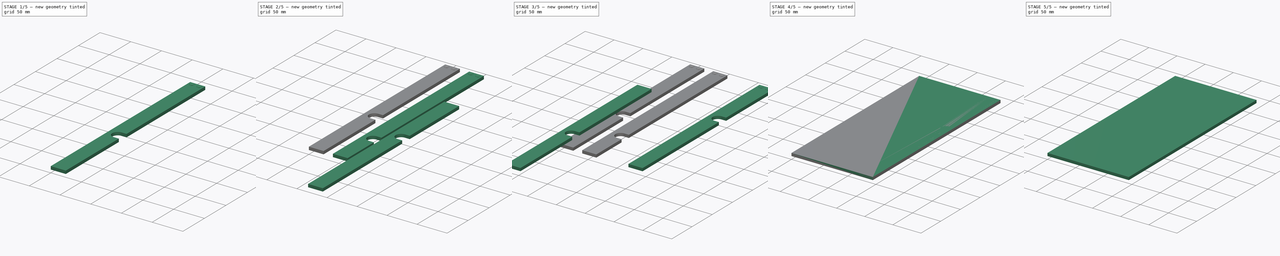
[diagram: build sequence overview — one tinted view per stage of 5, left to right]
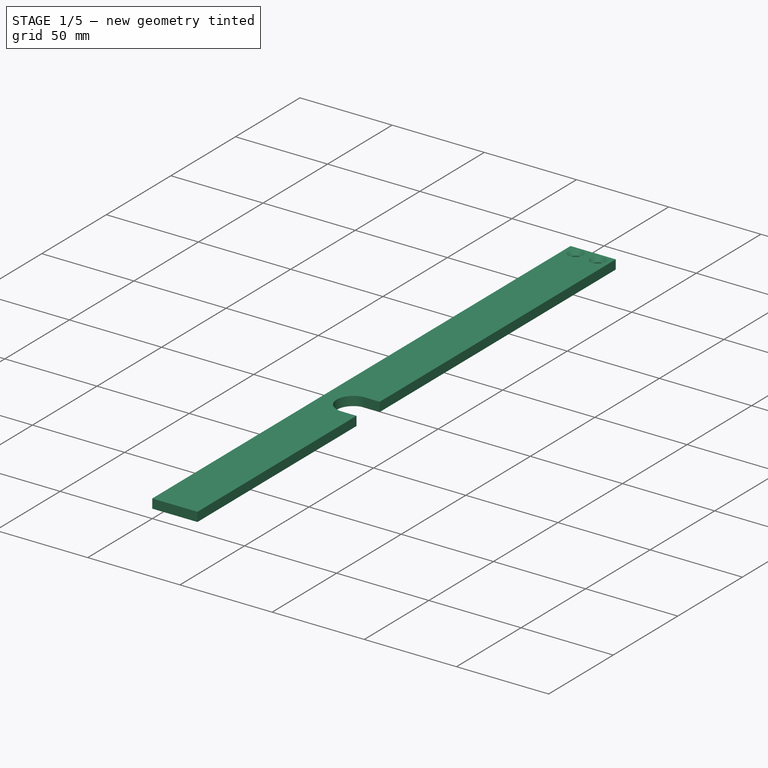
[diagram: stage 1 of 5 — iso view after this stage's code; geometry added in this stage tinted green]
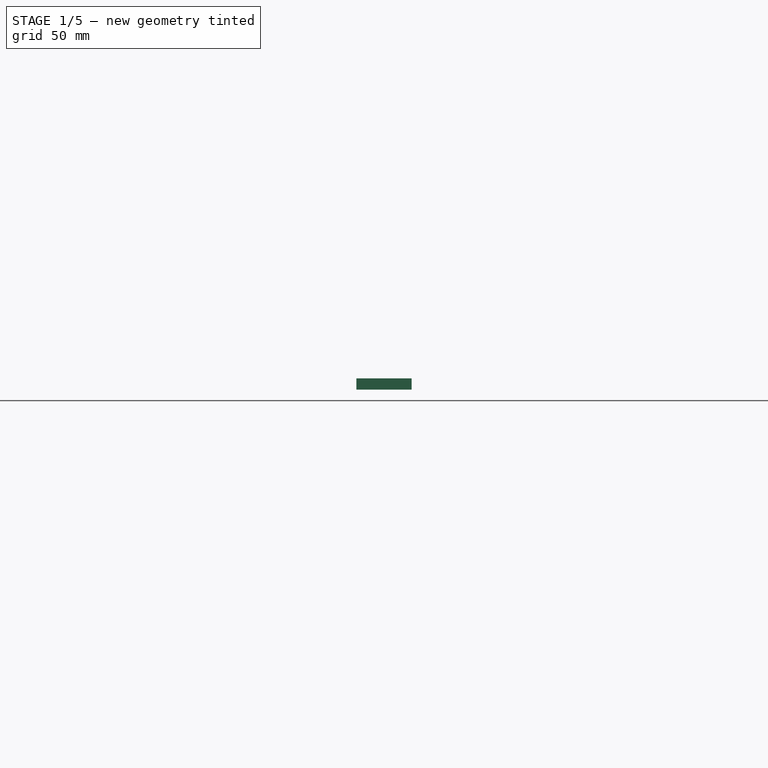
[diagram: stage 1 of 5 — front view after this stage's code; geometry added in this stage tinted green]
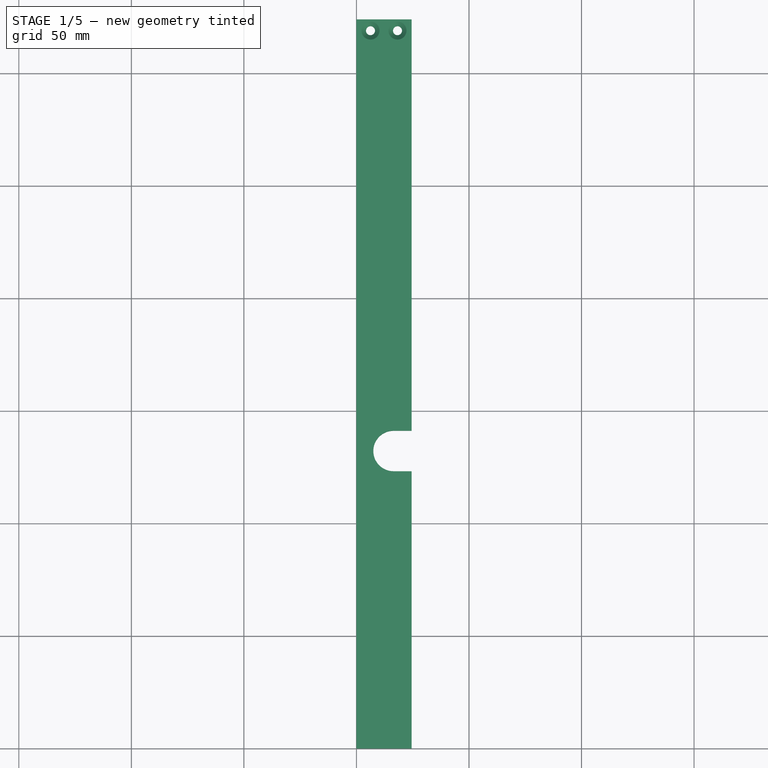
[diagram: stage 1 of 5 — top view after this stage's code; geometry added in this stage tinted green]
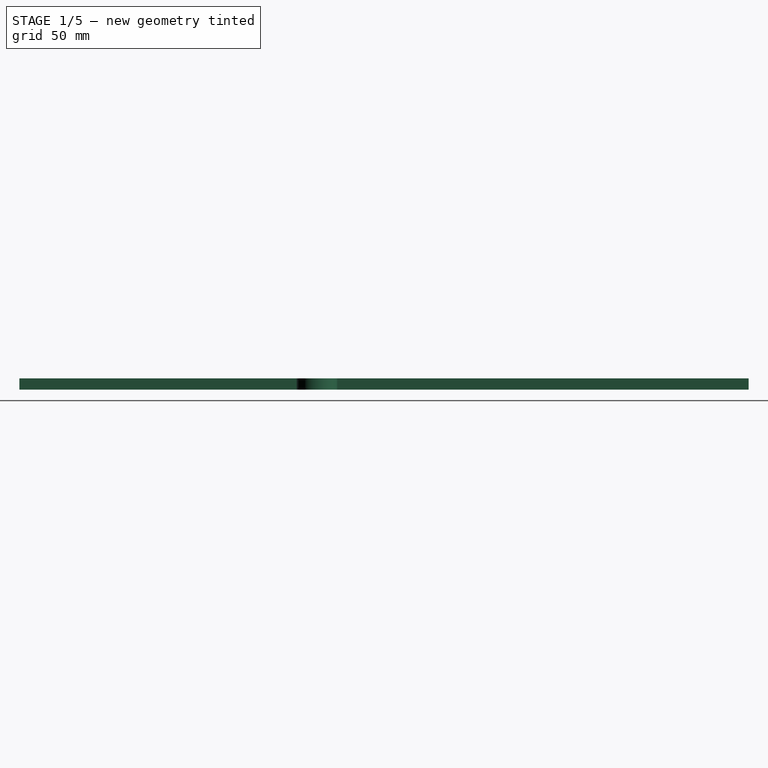
[diagram: stage 1 of 5 — right view after this stage's code; geometry added in this stage tinted green]
FCSTD DOCUMENT  (FreeCAD 0.19R23141 (Git))
Label: gear-locks-cam
License: All rights reserved
LicenseURL: http://en.wikipedia.org/wiki/All_rights_reserved
objects: Part::FeaturePython×10, Sketcher::SketchObject×9, Path::FeaturePython×7, PartDesign::ShapeBinder×4, PartDesign::Pad×4, PartDesign::Pocket×4, PartDesign::Chamfer×4, PartDesign::Body×4, App::FeaturePython×2, App::DocumentObjectGroup×2, Path::FeatureCompoundPython×2
note: 52 computed .brp shape members not serialized (recipe doc carries the construction recipe); baked Part::Feature solids carry a one-line shape summary decoded from their .brp

FEATURE [Sketcher::SketchObject] Sketch  label="MasterSketch"
  MapMode = 5
  sketch-geometry (22):
    g0: Circle CenterX=-238 CenterY=0 CenterZ=0 NormalX=0 NormalY=0 NormalZ=1 AngleXU=0 Radius=16.25
    g1: Circle CenterX=225 CenterY=0 CenterZ=0 NormalX=0 NormalY=0 NormalZ=1 AngleXU=0 Radius=79.25
    g2: Circle CenterX=-159.323 CenterY=24.4049 CenterZ=0 NormalX=0 NormalY=0 NormalZ=1 AngleXU=0 Radius=66.125
    g3: Circle CenterX=-69.3232 CenterY=-36.4177 CenterZ=0 NormalX=0 NormalY=0 NormalZ=1 AngleXU=0 Radius=55.625
    g4: Circle CenterX=20.6768 CenterY=28.9777 CenterZ=0 NormalX=0 NormalY=0 NormalZ=1 AngleXU=0 Radius=81.875
    g5: Circle CenterX=110.677 CenterY=89.8003 CenterZ=0 NormalX=0 NormalY=0 NormalZ=1 AngleXU=0 Radius=66.125
    g6: LineSegment StartX=-275 StartY=216.2 StartZ=0 EndX=275 EndY=216.2 EndZ=0
    g7: LineSegment StartX=275 StartY=216.2 StartZ=0 EndX=275 EndY=-133.8 EndZ=0
    g8: LineSegment StartX=275 StartY=-133.8 StartZ=0 EndX=-275 EndY=-133.8 EndZ=0
    g9: LineSegment StartX=-275 StartY=-133.8 StartZ=0 EndX=-275 EndY=216.2 EndZ=0
    g10: Circle CenterX=-159.323 CenterY=24.4049 CenterZ=0 NormalX=0 NormalY=0 NormalZ=1 AngleXU=0 Radius=53
    g11: Circle CenterX=-69.3232 CenterY=-36.4177 CenterZ=0 NormalX=0 NormalY=0 NormalZ=1 AngleXU=0 Radius=29.375
    g12: Circle CenterX=20.6768 CenterY=28.9777 CenterZ=0 NormalX=0 NormalY=0 NormalZ=1 AngleXU=0 Radius=42.5
    g13: Circle CenterX=110.677 CenterY=89.8003 CenterZ=0 NormalX=0 NormalY=0 NormalZ=1 AngleXU=0 Radius=13.625
    g14: Circle CenterX=225 CenterY=0 CenterZ=0 NormalX=0 NormalY=0 NormalZ=1 AngleXU=0 Radius=63.5
    g15: LineSegment [constr] StartX=-159.323 StartY=24.4049 StartZ=0 EndX=-159.323 EndY=0 EndZ=0
    g16: LineSegment [constr] StartX=-69.3232 StartY=-36.4177 StartZ=0 EndX=-69.3232 EndY=0 EndZ=0
    g17: LineSegment [constr] StartX=20.6768 StartY=28.9777 StartZ=0 EndX=20.6768 EndY=0 EndZ=0
    g18: LineSegment [constr] StartX=110.677 StartY=89.8003 StartZ=0 EndX=110.677 EndY=0 EndZ=0
    g19: LineSegment [constr] StartX=-159.323 StartY=0 StartZ=0 EndX=-69.3232 EndY=0 EndZ=0
    g20: LineSegment [constr] StartX=-69.3232 StartY=0 StartZ=0 EndX=20.6768 EndY=0 EndZ=0
    g21: LineSegment [constr] StartX=20.6768 StartY=0 StartZ=0 EndX=110.677 EndY=0 EndZ=0
  constraints (61):
    c: PointOnObject(g0,g-1)
    c: PointOnObject(g1,g-1)
    c: Coincident(g6,g7)
    c: Coincident(g7,g8)
    c: Coincident(g8,g9)
    c: Coincident(g9,g6)
    c: Horizontal(g6)
    c: Vertical(g7)
    c: Vertical(g9)
    c: DistanceX(g6,g6) = 550
    c: DistanceY(g9,g9) = 350
    c: Radius(g2) = 66.125
    c: Radius(g0) = 16.25
    c: Tangent(g2,g0)
    c: Radius(g3) = 55.625
    c: Coincident(g10,g2)
    c: Coincident(g11,g3)
    c: Coincident(g12,g4)
    c: Coincident(g13,g5)
    c: Coincident(g14,g1)
    c: Radius(g10) = 53
    c: Radius(g11) = 29.375
    c: Tangent(g3,g10)
    c: Tangent(g4,g11)
    c: Tangent(g5,g12)
    c: Tangent(g1,g5)
    c: Radius(g4) = 81.875
    c: Radius(g12) = 42.5
    c: Radius(g5) = 66.125
    c: Radius(g13) = 13.625
    c: Coincident(g15,g2)
    c: PointOnObject(g15,g-1)
    c: Coincident(g16,g3)
    c: PointOnObject(g16,g-1)
    c: Vertical(g16)
    c: Coincident(g17,g4)
    c: PointOnObject(g17,g-1)
    c: Vertical(g17)
    c: Coincident(g18,g5)
    c: PointOnObject(g18,g-1)
    c: Vertical(g18)
    c: Vertical(g15)
    c: Coincident(g19,g15)
    c: Coincident(g19,g16)
    c: Coincident(g20,g16)
    c: Coincident(g20,g17)
    c: Coincident(g21,g17)
    c: Coincident(g21,g18)
    c: Radius(g1) = 79.25
    c: Radius(g14) = 63.5
    c: Distance(g19) = 90
    c: DistanceX(g6,g0) = 37
    c: Symmetric(g8,g7,g-2)
    c: Equal(g19,g20)
    c: Equal(g20,g21)
    c: Distance(g2,g3) = 108.625
    c: Distance(g3,g4) = 111.25
    c: Distance(g4,g5) = 108.625
    c: Distance(g5,g1) = 145.375
    c: DistanceY(g8,g-1) = 133.8
    c: DistanceX(g1,g6) = 50
FEATURE [PartDesign::ShapeBinder] ShapeBinder009
  Support = -> [Sketch]
  TraceSupport = false
FEATURE [Sketcher::SketchObject] Sketch051
  ExternalGeometry = -> [ShapeBinder009]
  MapMode = 5
  Support = -> [XY_Plane018]
  sketch-geometry (8):
    g0: LineSegment StartX=-171.323 StartY=15.4049 StartZ=0 EndX=-171.323 EndY=-107.8 EndZ=0
    g1: LineSegment StartX=-171.323 StartY=-107.8 StartZ=0 EndX=-195.823 EndY=-107.8 EndZ=0
    g2: LineSegment StartX=-195.823 StartY=-107.8 StartZ=0 EndX=-195.823 EndY=216.2 EndZ=0
    g3: LineSegment StartX=-195.823 StartY=216.2 StartZ=0 EndX=-171.323 EndY=216.2 EndZ=0
    g4: LineSegment StartX=-171.323 StartY=216.2 StartZ=0 EndX=-171.323 EndY=33.4049 EndZ=0
    g5: ArcOfCircle CenterX=-179.323 CenterY=24.4049 CenterZ=0 NormalX=0 NormalY=0 NormalZ=1 AngleXU=0 Radius=9 StartAngle=1.5708 EndAngle=4.71239
    g6: LineSegment StartX=-179.323 StartY=15.4049 StartZ=0 EndX=-171.323 EndY=15.4049 EndZ=0
    g7: LineSegment StartX=-179.323 StartY=33.4049 StartZ=0 EndX=-171.323 EndY=33.4049 EndZ=0
  constraints (25):
    c: Vertical(g0)
    c: Coincident(g0,g1)
    c: Coincident(g1,g2)
    c: Vertical(g2)
    c: Horizontal(g3)
    c: Coincident(g3,g4)
    c: Vertical(g4)
    c: Vertical(g0,g4)
    c: Coincident(g6,g5)
    c: Coincident(g6,g0)
    c: Coincident(g7,g5)
    c: Coincident(g7,g4)
    c: Horizontal(g7)
    c: Horizontal(g6)
    c: Horizontal(g1)
    c: Horizontal(g5,g-3)
    c: Radius(g5) = 9
    c: Vertical(g5,g5)
    c: Vertical(g5,g5)
    c: DistanceX(g1,g1) = 24.5
    c: DistanceX(g5,g-3) = 20
    c: Coincident(g2,g3)
    c: PointOnObject(g2,g-4)
    c: DistanceX(g0,g-3) = 12
    c: DistanceY(g2,g2) = 324
FEATURE [PartDesign::Pad] Pad025
  Direction = (1,1,1)
  Length = 5
  Length2 = 100
  Profile = -> Sketch051
  Refine = true
  Type = 0
FEATURE [Sketcher::SketchObject] Sketch057
  ExternalGeometry = -> [Pad025]
  MapMode = 5
  Placement = pos=(0,0,5) rot=(0,0,1;0rad)
  Support = -> [Pad025]
  sketch-geometry (4):
    g0: Circle CenterX=-189.573 CenterY=211.2 CenterZ=0 NormalX=0 NormalY=0 NormalZ=1 AngleXU=0 Radius=2
    g1: Circle CenterX=-177.573 CenterY=211.2 CenterZ=0 NormalX=0 NormalY=0 NormalZ=1 AngleXU=0 Radius=2
    g2: LineSegment [constr] StartX=-189.573 StartY=211.2 StartZ=0 EndX=-177.573 EndY=211.2 EndZ=0
    g3: LineSegment [constr] StartX=-183.573 StartY=211.2 StartZ=0 EndX=-183.573 EndY=216.2 EndZ=0
  constraints (10):
    c: Equal(g1,g0)
    c: Coincident(g2,g0)
    c: Coincident(g2,g1)
    c: PointOnObject(g3,g2)
    c: PointOnObject(g3,g-3)
    c: Symmetric(g0,g1,g3)
    c: Symmetric(g-3,g-3,g3)
    c: DistanceX(g2,g2) = 12
    c: Radius(g0) = 2
    c: DistanceY(g3,g3) = 5
FEATURE [PartDesign::Pocket] Pocket035
  BaseFeature = -> Pad025
  Length = 5
  Length2 = 100
  Profile = -> Sketch057
  Refine = true
  Type = 1
FEATURE [PartDesign::Chamfer] Chamfer019
  Angle = 45
  Base = -> Pocket035 [Edge24,Edge23]
  BaseFeature = -> Pocket035
  ChamferType = 0
  FlipDirection = false
  Refine = true
  Size = 2
  Size2 = 1
  SupportTransform = false
FEATURE [Part::FeaturePython] Clone007  label="Model-GearLockA001"  # Draft clone (typed FeaturePython)
  AttacherType = Attacher::AttachEngine3D
  Fuse = false
  Objects = -> [Body018]
  PathResource = Model
  Placement = pos=(195.823,107.8,-5) rot=(0,0,1;0rad)
  Scale = (1,1,1)
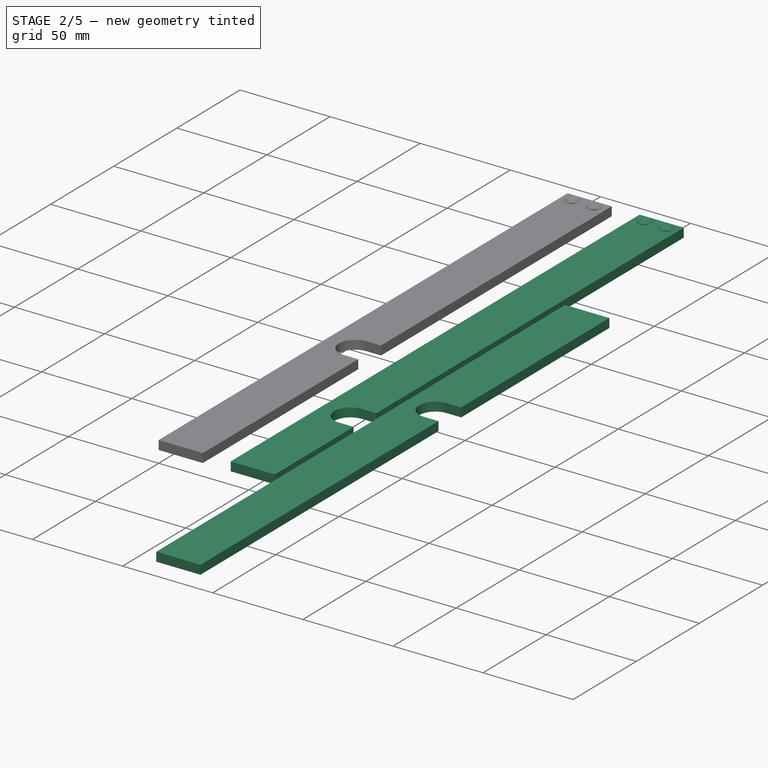
[diagram: stage 2 of 5 — iso view after this stage's code; geometry added in this stage tinted green]
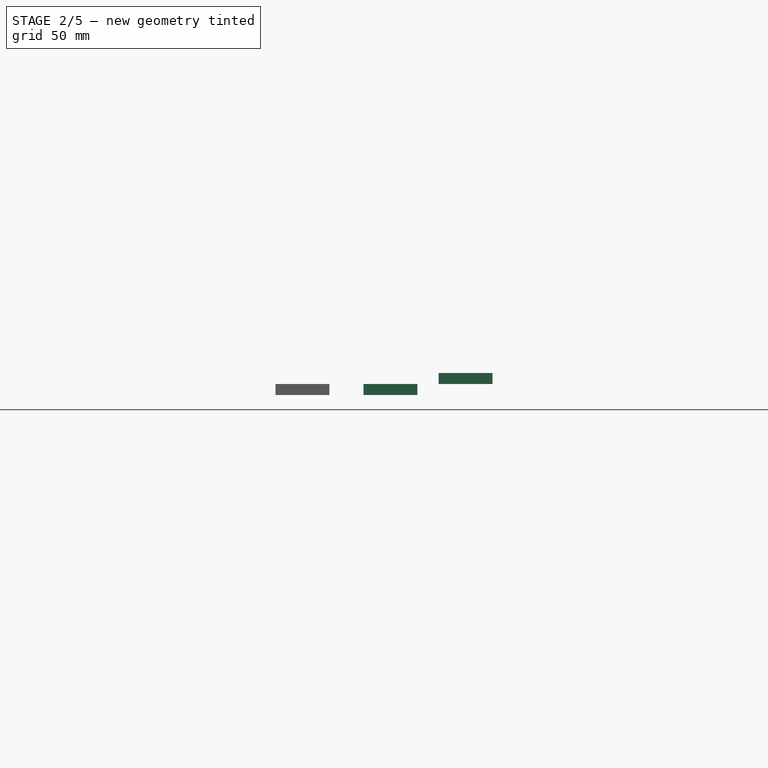
[diagram: stage 2 of 5 — front view after this stage's code; geometry added in this stage tinted green]
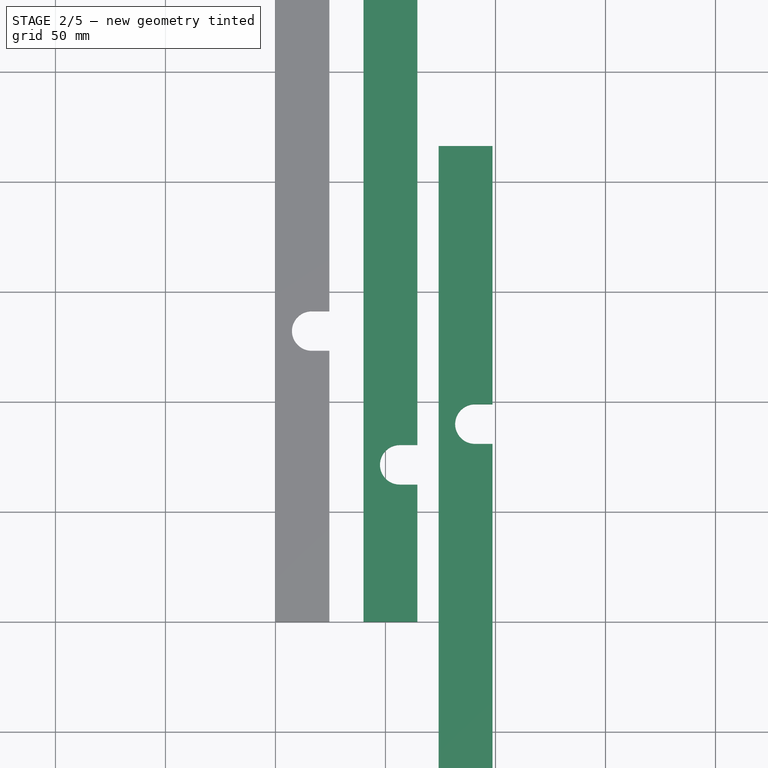
[diagram: stage 2 of 5 — top view after this stage's code; geometry added in this stage tinted green]
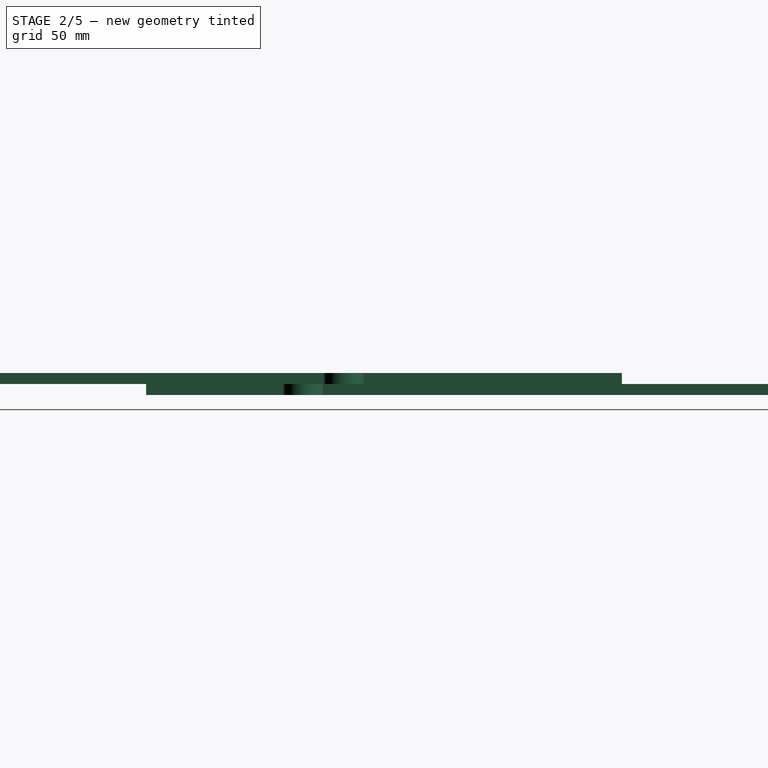
[diagram: stage 2 of 5 — right view after this stage's code; geometry added in this stage tinted green]
FEATURE [PartDesign::ShapeBinder] ShapeBinder010
  Support = -> [Sketch]
  TraceSupport = false
FEATURE [Sketcher::SketchObject] Sketch053
  ExternalGeometry = -> [ShapeBinder010]
  MapMode = 5
  Support = -> [XY_Plane019]
  sketch-geometry (8):
    g0: LineSegment StartX=-81.3232 StartY=-45.4177 StartZ=0 EndX=-81.3232 EndY=-107.8 EndZ=0
    g1: LineSegment StartX=-81.3232 StartY=-107.8 StartZ=0 EndX=-105.823 EndY=-107.8 EndZ=0
    g2: LineSegment StartX=-105.823 StartY=-107.8 StartZ=0 EndX=-105.823 EndY=216.2 EndZ=0
    g3: LineSegment StartX=-105.823 StartY=216.2 StartZ=0 EndX=-81.3232 EndY=216.2 EndZ=0
    g4: LineSegment StartX=-81.3232 StartY=216.2 StartZ=0 EndX=-81.3232 EndY=-27.4177 EndZ=0
    g5: ArcOfCircle CenterX=-89.3232 CenterY=-36.4177 CenterZ=0 NormalX=0 NormalY=0 NormalZ=1 AngleXU=0 Radius=9 StartAngle=1.5708 EndAngle=4.71239
    g6: LineSegment StartX=-89.3232 StartY=-45.4177 StartZ=0 EndX=-81.3232 EndY=-45.4177 EndZ=0
    g7: LineSegment StartX=-89.3232 StartY=-27.4177 StartZ=0 EndX=-81.3232 EndY=-27.4177 EndZ=0
  constraints (25):
    c: Vertical(g0)
    c: Coincident(g0,g1)
    c: Coincident(g1,g2)
    c: Vertical(g2)
    c: Horizontal(g3)
    c: Coincident(g3,g4)
    c: Vertical(g4)
    c: Vertical(g0,g4)
    c: Coincident(g6,g5)
    c: Coincident(g6,g0)
    c: Coincident(g7,g5)
    c: Coincident(g7,g4)
    c: Horizontal(g7)
    c: Horizontal(g6)
    c: Horizontal(g1)
    c: Radius(g5) = 9
    c: Vertical(g5,g5)
    c: Vertical(g5,g5)
    c: DistanceX(g1,g1) = 24.5
    c: Coincident(g2,g3)
    c: PointOnObject(g2,g-3)
    c: DistanceY(g2,g2) = 324
    c: Horizontal(g-4,g5)
    c: DistanceX(g5,g-4) = 20
    c: DistanceX(g4,g-4) = 12
FEATURE [PartDesign::Pad] Pad026
  Direction = (1,1,1)
  Length = 5
  Length2 = 100
  Profile = -> Sketch053
  Refine = true
  Type = 0
FEATURE [PartDesign::ShapeBinder] ShapeBinder012
  Support = -> [Sketch]
  TraceSupport = false
FEATURE [Sketcher::SketchObject] Sketch055
  ExternalGeometry = -> [ShapeBinder012]
  MapMode = 5
  sketch-geometry (8):
    g0: LineSegment StartX=98.6768 StartY=80.8003 StartZ=0 EndX=98.6768 EndY=-107.8 EndZ=0
    g1: LineSegment StartX=98.6768 StartY=-107.8 StartZ=0 EndX=74.1768 EndY=-107.8 EndZ=0
    g2: LineSegment StartX=74.1768 StartY=-107.8 StartZ=0 EndX=74.1768 EndY=216.2 EndZ=0
    g3: LineSegment StartX=74.1768 StartY=216.2 StartZ=0 EndX=98.6768 EndY=216.2 EndZ=0
    g4: LineSegment StartX=98.6768 StartY=216.2 StartZ=0 EndX=98.6768 EndY=98.8003 EndZ=0
    g5: ArcOfCircle CenterX=90.6768 CenterY=89.8003 CenterZ=0 NormalX=0 NormalY=0 NormalZ=1 AngleXU=0 Radius=9 StartAngle=1.5708 EndAngle=4.71239
    g6: LineSegment StartX=90.6768 StartY=80.8003 StartZ=0 EndX=98.6768 EndY=80.8003 EndZ=0
    g7: LineSegment StartX=90.6768 StartY=98.8003 StartZ=0 EndX=98.6768 EndY=98.8003 EndZ=0
  constraints (25):
    c: Vertical(g0)
    c: Coincident(g0,g1)
    c: Coincident(g1,g2)
    c: Vertical(g2)
    c: Horizontal(g3)
    c: Coincident(g3,g4)
    c: Vertical(g4)
    c: Vertical(g0,g4)
    c: Coincident(g6,g5)
    c: Coincident(g6,g0)
    c: Coincident(g7,g5)
    c: Coincident(g7,g4)
    c: Horizontal(g7)
    c: Horizontal(g6)
    c: Horizontal(g1)
    c: Radius(g5) = 9
    c: Vertical(g5,g5)
    c: Vertical(g5,g5)
    c: DistanceX(g1,g1) = 24.5
    c: Coincident(g2,g3)
    c: PointOnObject(g2,g-3)
    c: DistanceY(g2,g2) = 324
    c: DistanceX(g5,g-4) = 20
    c: DistanceX(g4,g-4) = 12
    c: Horizontal(g5,g-4)
FEATURE [PartDesign::Pad] Pad028
  Direction = (1,1,1)
  Length = 5
  Length2 = 100
  Profile = -> Sketch055
  Refine = true
  Type = 0
FEATURE [PartDesign::Body] Body018  label="GearLockA"
  Group = -> [ShapeBinder009,Sketch051,Pad025,Sketch057,Pocket035,Chamfer019]
  Origin = -> Origin018
  Placement = pos=(0,0,15.5) rot=(0,0,1;0rad)
  Tip = -> Chamfer019
FEATURE [Sketcher::SketchObject] Sketch058
  ExternalGeometry = -> [Pad026]
  MapMode = 5
  Placement = pos=(0,0,5) rot=(0,0,1;0rad)
  Support = -> [Pad026]
  sketch-geometry (4):
    g0: LineSegment [constr] StartX=-93.5732 StartY=216.2 StartZ=0 EndX=-93.5732 EndY=211.2 EndZ=0
    g1: LineSegment [constr] StartX=-99.5732 StartY=211.2 StartZ=0 EndX=-87.5732 EndY=211.2 EndZ=0
    g2: Circle CenterX=-99.5732 CenterY=211.2 CenterZ=0 NormalX=0 NormalY=0 NormalZ=1 AngleXU=0 Radius=2
    g3: Circle CenterX=-87.5732 CenterY=211.2 CenterZ=0 NormalX=0 NormalY=0 NormalZ=1 AngleXU=0 Radius=2
  constraints (10):
    c: PointOnObject(g0,g-3)
    c: PointOnObject(g0,g1)
    c: Symmetric(g1,g1,g0)
    c: DistanceX(g1,g1) = 12
    c: DistanceY(g0,g0) = 5
    c: Symmetric(g-3,g-3,g0)
    c: Coincident(g2,g1)
    c: Coincident(g3,g1)
    c: Equal(g3,g2)
    c: Radius(g2) = 2
FEATURE [PartDesign::Pocket] Pocket036
  BaseFeature = -> Pad026
  Length = 5
  Length2 = 100
  Profile = -> Sketch058
  Refine = true
  Type = 1
FEATURE [PartDesign::Chamfer] Chamfer020
  Angle = 45
  Base = -> Pocket036 [Edge23,Edge24]
  BaseFeature = -> Pocket036
  ChamferType = 0
  FlipDirection = false
  Refine = true
  Size = 2
  Size2 = 1
  SupportTransform = false
FEATURE [Path::FeaturePython] Default_Tool001  label="TC: Default Tool001"  # Path/CAM operation (typed FeaturePython)
  HorizFeed = 10
  HorizRapid = 0
  SpindleDir = 0
  SpindleSpeed = 16000
  ToolNumber = 1
  VertFeed = 10
  VertRapid = 0
  expr: VertRapid = SetupSheet001.VertRapid
  expr: HorizRapid = SetupSheet001.HorizRapid
FEATURE [Part::FeaturePython] Clone006  label="Model-GearLockB001"  # Draft clone (typed FeaturePython)
  AttacherType = Attacher::AttachEngine3D
  Fuse = false
  Objects = -> [Body019]
  PathResource = Model
  Placement = pos=(145.823,107.8,-5) rot=(0,0,1;0rad)
  Scale = (1,1,1)
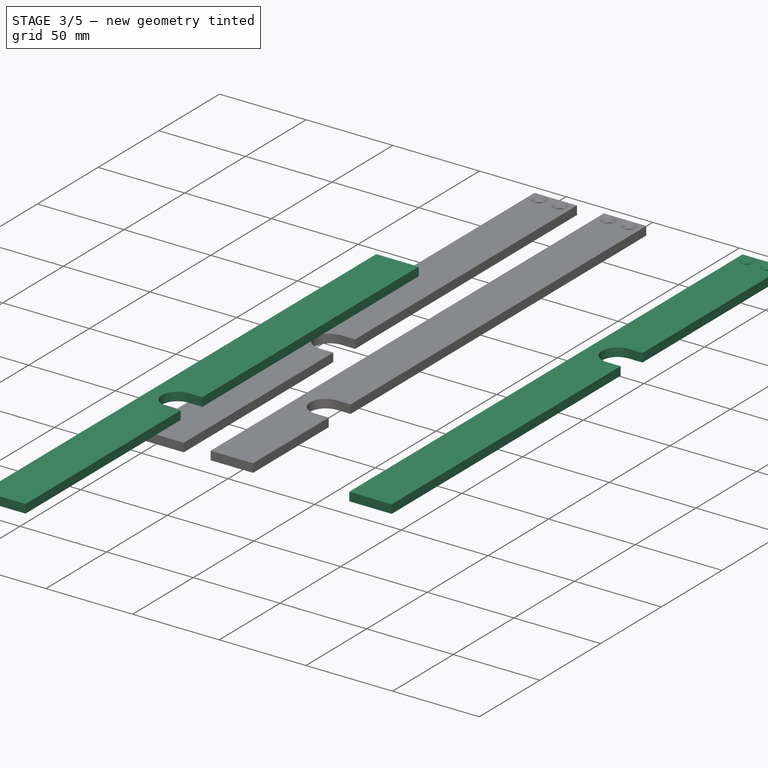
[diagram: stage 3 of 5 — iso view after this stage's code; geometry added in this stage tinted green]
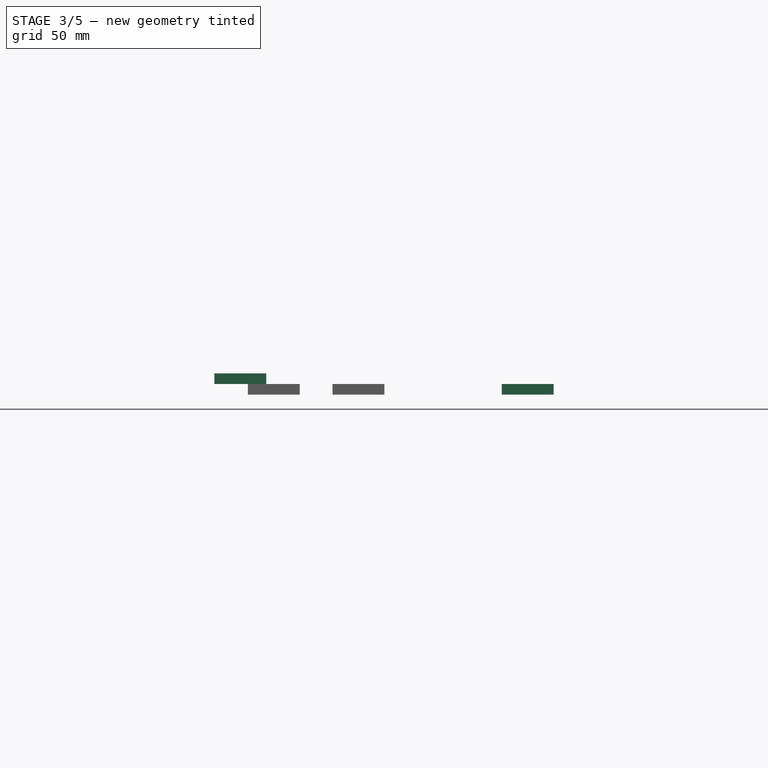
[diagram: stage 3 of 5 — front view after this stage's code; geometry added in this stage tinted green]
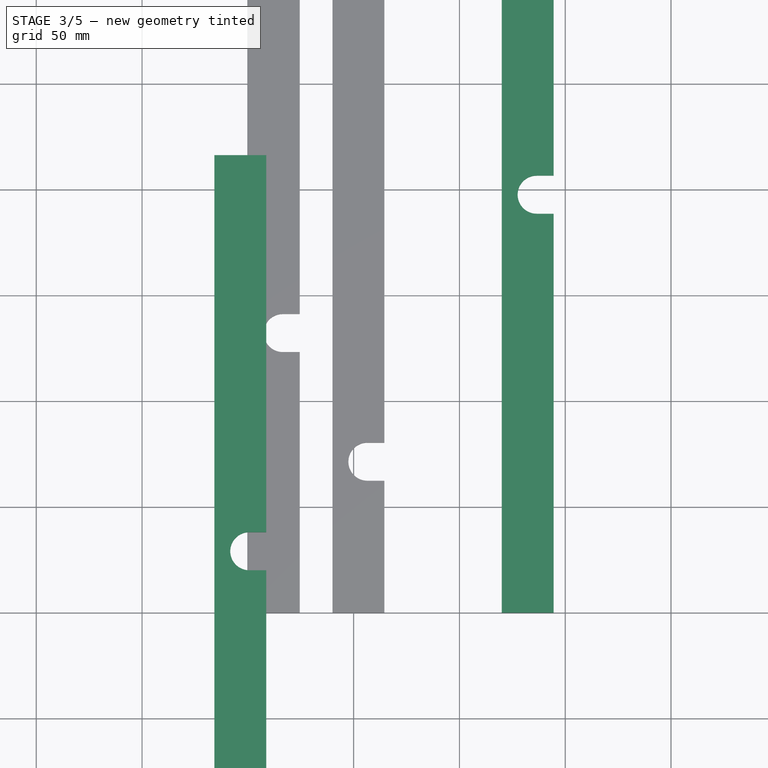
[diagram: stage 3 of 5 — top view after this stage's code; geometry added in this stage tinted green]
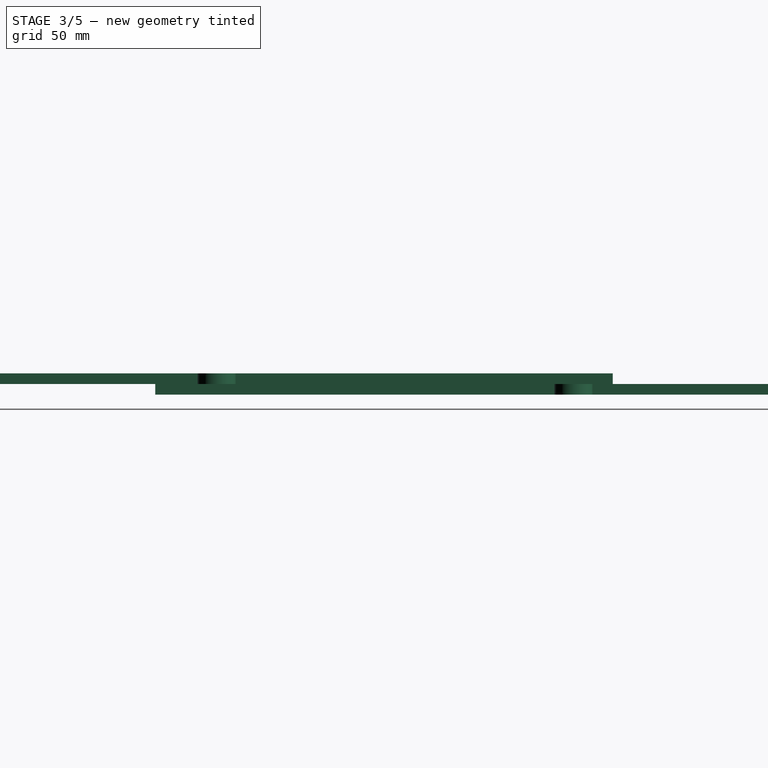
[diagram: stage 3 of 5 — right view after this stage's code; geometry added in this stage tinted green]
FEATURE [PartDesign::ShapeBinder] ShapeBinder011
  Support = -> [Sketch]
  TraceSupport = false
FEATURE [Sketcher::SketchObject] Sketch054
  ExternalGeometry = -> [ShapeBinder011]
  MapMode = 5
  sketch-geometry (8):
    g0: LineSegment StartX=8.67682 StartY=19.9777 StartZ=0 EndX=8.67682 EndY=-107.8 EndZ=0
    g1: LineSegment StartX=8.67682 StartY=-107.8 StartZ=0 EndX=-15.8232 EndY=-107.8 EndZ=0
    g2: LineSegment StartX=-15.8232 StartY=-107.8 StartZ=0 EndX=-15.8232 EndY=216.2 EndZ=0
    g3: LineSegment StartX=-15.8232 StartY=216.2 StartZ=0 EndX=8.67682 EndY=216.2 EndZ=0
    g4: LineSegment StartX=8.67682 StartY=216.2 StartZ=0 EndX=8.67682 EndY=37.9777 EndZ=0
    g5: ArcOfCircle CenterX=0.676816 CenterY=28.9777 CenterZ=0 NormalX=0 NormalY=0 NormalZ=1 AngleXU=0 Radius=9 StartAngle=1.5708 EndAngle=4.71239
    g6: LineSegment StartX=0.676816 StartY=19.9777 StartZ=0 EndX=8.67682 EndY=19.9777 EndZ=0
    g7: LineSegment StartX=0.676816 StartY=37.9777 StartZ=0 EndX=8.67682 EndY=37.9777 EndZ=0
  constraints (25):
    c: Vertical(g0)
    c: Coincident(g0,g1)
    c: Coincident(g1,g2)
    c: Vertical(g2)
    c: Horizontal(g3)
    c: Coincident(g3,g4)
    c: Vertical(g4)
    c: Vertical(g0,g4)
    c: Coincident(g6,g5)
    c: Coincident(g6,g0)
    c: Coincident(g7,g5)
    c: Coincident(g7,g4)
    c: Horizontal(g7)
    c: Horizontal(g6)
    c: Horizontal(g1)
    c: Radius(g5) = 9
    c: Vertical(g5,g5)
    c: Vertical(g5,g5)
    c: DistanceX(g1,g1) = 24.5
    c: Coincident(g2,g3)
    c: PointOnObject(g2,g-3)
    c: DistanceY(g2,g2) = 324
    c: Horizontal(g-4,g5)
    c: DistanceX(g5,g-4) = 20
    c: DistanceX(g4,g-4) = 12
FEATURE [PartDesign::Pad] Pad027
  Direction = (1,1,1)
  Length = 5
  Length2 = 100
  Profile = -> Sketch054
  Refine = true
  Type = 0
FEATURE [PartDesign::Body] Body020  label="GearLockC"
  Group = -> [ShapeBinder011,Sketch054,Pad027,Sketch059,Pocket037,Chamfer021]
  Origin = -> Origin020
  Placement = pos=(-100,0,15.5) rot=(0,0,1;0rad)
  Tip = -> Chamfer021
FEATURE [Sketcher::SketchObject] Sketch060
  ExternalGeometry = -> [Pad028]
  MapMode = 5
  Placement = pos=(0,0,5) rot=(0,0,1;0rad)
  Support = -> [Pad028]
  sketch-geometry (4):
    g0: LineSegment [constr] StartX=80.4268 StartY=211.2 StartZ=0 EndX=92.4268 EndY=211.2 EndZ=0
    g1: LineSegment [constr] StartX=86.4268 StartY=216.2 StartZ=0 EndX=86.4268 EndY=211.2 EndZ=0
    g2: Circle CenterX=80.4268 CenterY=211.2 CenterZ=0 NormalX=0 NormalY=0 NormalZ=1 AngleXU=0 Radius=2
    g3: Circle CenterX=92.4268 CenterY=211.2 CenterZ=0 NormalX=0 NormalY=0 NormalZ=1 AngleXU=0 Radius=2
  constraints (10):
    c: PointOnObject(g1,g-3)
    c: PointOnObject(g1,g0)
    c: DistanceY(g1,g1) = 5
    c: DistanceX(g0,g0) = 12
    c: Symmetric(g0,g0,g1)
    c: Symmetric(g-3,g-3,g1)
    c: Coincident(g2,g0)
    c: Coincident(g3,g0)
    c: Equal(g3,g2)
    c: Radius(g2) = 2
FEATURE [PartDesign::Pocket] Pocket038
  BaseFeature = -> Pad028
  Length = 5
  Length2 = 100
  Profile = -> Sketch060
  Refine = true
  Type = 1
FEATURE [PartDesign::Chamfer] Chamfer022
  Angle = 45
  Base = -> Pocket038 [Edge24,Edge23]
  BaseFeature = -> Pocket038
  ChamferType = 0
  FlipDirection = false
  Refine = true
  Size = 2
  Size2 = 1
  SupportTransform = false
FEATURE [Part::FeaturePython] Clone005  label="Model-GearLockD001"  # Draft clone (typed FeaturePython)
  AttacherType = Attacher::AttachEngine3D
  Fuse = false
  Objects = -> [Body021]
  PathResource = Model
  Placement = pos=(45.8232,107.8,-5) rot=(0,0,1;0rad)
  Scale = (1,1,1)
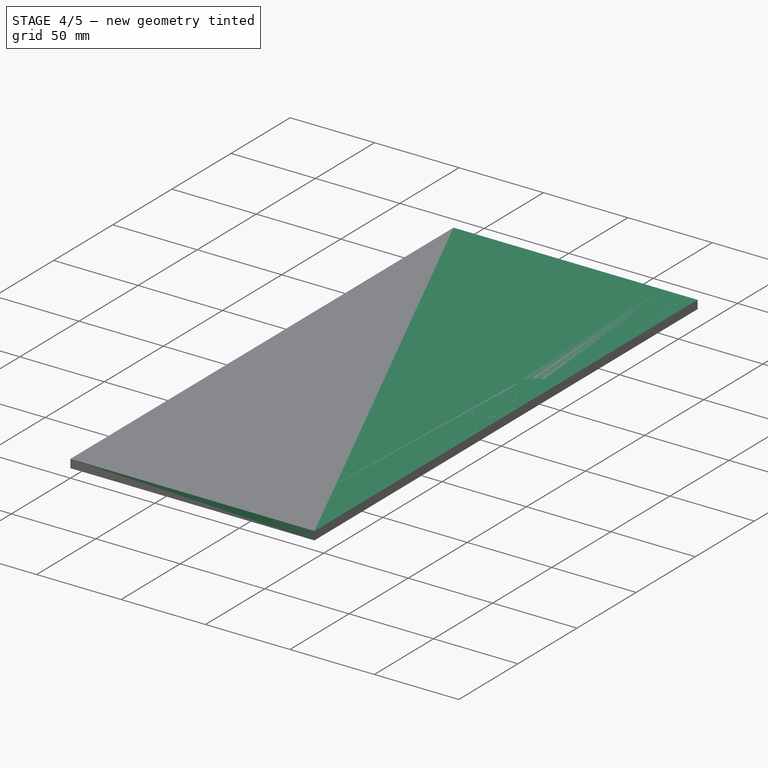
[diagram: stage 4 of 5 — iso view after this stage's code; geometry added in this stage tinted green]
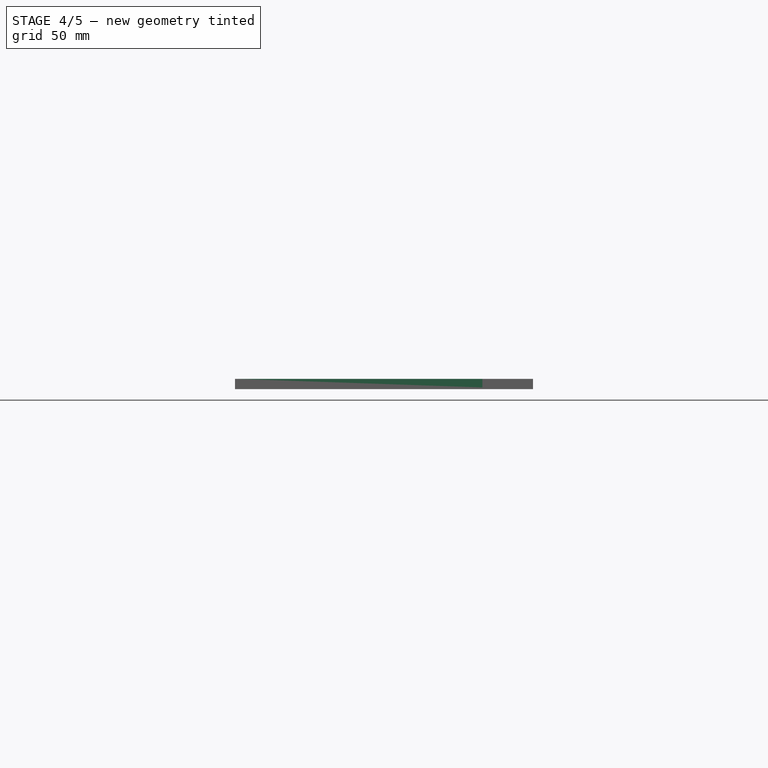
[diagram: stage 4 of 5 — front view after this stage's code; geometry added in this stage tinted green]
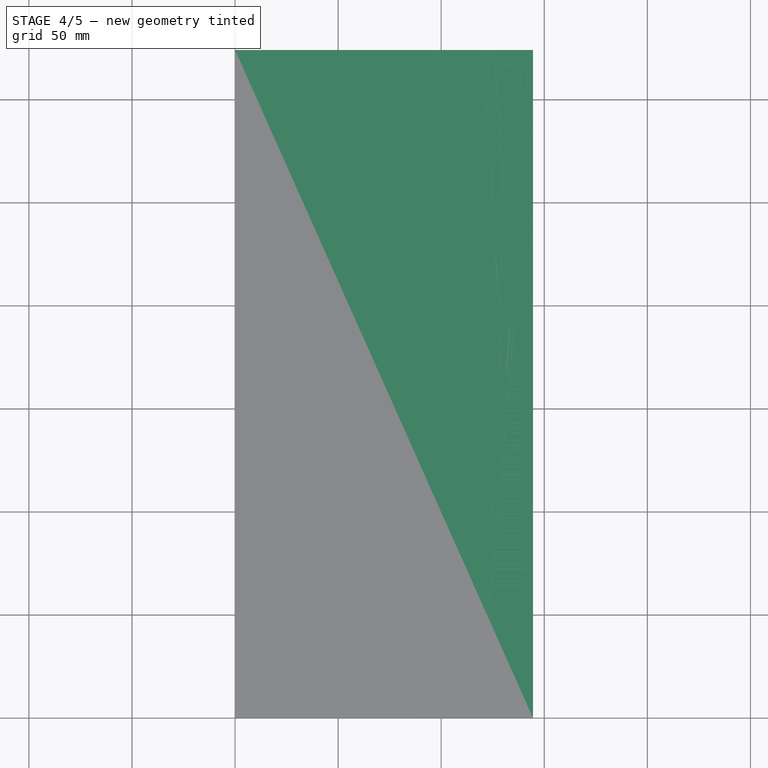
[diagram: stage 4 of 5 — top view after this stage's code; geometry added in this stage tinted green]
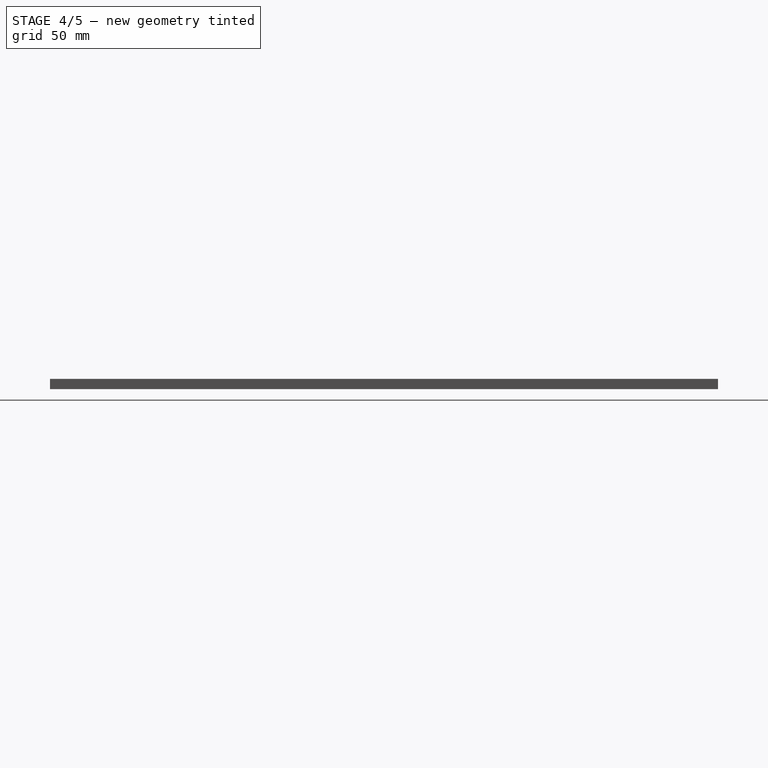
[diagram: stage 4 of 5 — right view after this stage's code; geometry added in this stage tinted green]
FEATURE [PartDesign::Body] Body019  label="GearLockB"
  Group = -> [ShapeBinder010,Sketch053,Pad026,Sketch058,Pocket036,Chamfer020]
  Origin = -> Origin019
  Placement = pos=(-50,0,15.5) rot=(0,0,1;0rad)
  Tip = -> Chamfer020
FEATURE [Sketcher::SketchObject] Sketch059
  ExternalGeometry = -> [Pad027]
  MapMode = 5
  Placement = pos=(0,0,5) rot=(0,0,1;0rad)
  Support = -> [Pad027]
  sketch-geometry (4):
    g0: LineSegment [constr] StartX=-9.57318 StartY=211.2 StartZ=0 EndX=2.42682 EndY=211.2 EndZ=0
    g1: LineSegment [constr] StartX=-3.57318 StartY=211.2 StartZ=0 EndX=-3.57318 EndY=216.2 EndZ=0
    g2: Circle CenterX=-9.57318 CenterY=211.2 CenterZ=0 NormalX=0 NormalY=0 NormalZ=1 AngleXU=0 Radius=2
    g3: Circle CenterX=2.42682 CenterY=211.2 CenterZ=0 NormalX=0 NormalY=0 NormalZ=1 AngleXU=0 Radius=2
  constraints (10):
    c: PointOnObject(g1,g0)
    c: PointOnObject(g1,g-3)
    c: Symmetric(g-3,g-3,g1)
    c: Symmetric(g0,g0,g1)
    c: DistanceY(g1,g1) = 5
    c: DistanceX(g0,g0) = 12
    c: Coincident(g3,g0)
    c: Coincident(g2,g0)
    c: Equal(g2,g3)
    c: Radius(g2) = 2
FEATURE [PartDesign::Pocket] Pocket037
  BaseFeature = -> Pad027
  Length = 5
  Length2 = 100
  Profile = -> Sketch059
  Refine = true
  Type = 1
FEATURE [PartDesign::Chamfer] Chamfer021
  Angle = 45
  Base = -> Pocket037 [Edge24,Edge23]
  BaseFeature = -> Pocket037
  ChamferType = 0
  FlipDirection = false
  Refine = true
  Size = 2
  Size2 = 1
  SupportTransform = false
FEATURE [Part::FeaturePython] Clone003  label="Model-GearLockD"  # Draft clone (typed FeaturePython)
  AttacherType = Attacher::AttachEngine3D
  Fuse = false
  Objects = -> [Body021]
  PathResource = Model
  Placement = pos=(45.8232,107.8,-5) rot=(0,0,1;0rad)
  Scale = (1,1,1)
FEATURE [Path::FeaturePython] Profile  # Path/CAM operation (typed FeaturePython)
  Active = true
  AreaParams:
    Tolerance = 1e-07
    FitArcs = True
    Simplify = False
    CleanDistance = 0.0
    Accuracy = 0.01
    Unit = 1.0
    MinArcPoints = 4
    MaxArcPoints = 100
    ClipperScale = 10000000.0
    Fill = 0
    Coplanar = 0
    Reorient = True
    Outline = False
    Explode = False
    OpenMode = 0
    Deflection = 0.01
    SubjectFill = 0
    ClipFill = 0
    Offset = 1.0
    ExtraPass = 0
    Stepover = 0.0
    LastStepover = 0.0
    JoinType = 0
    EndType = 0
    MiterLimit = 2.0
    RoundPrecision = 0.0
    PocketMode = 0
    ToolRadius = 1.0
    PocketExtraOffset = 0.0
    PocketStepover = 0.0
    PocketLastStepover = 0.0
    FromCenter = False
    Angle = 45.0
    AngleShift = 0.0
    Shift = 0.0
    Thicken = False
    SectionCount = -1
    Stepdown = 1.0
    SectionOffset = 0.0
    SectionTolerance = 1e-06
    SectionMode = 2
    Project = False
  AttemptInverseAngle = true
  ClearanceHeight = 5
  CoolantMode = None
  CycleTime = 00:29:27
  Direction = 0
  EnableRotation = 0
  ExpandProfile = 0
  ExpandProfileStepOver = 100
  FinalDepth = -5.5
  HandleMultipleFeatures = 1
  InverseAngle = false
  JoinType = 0
  LimitDepthToFace = true
  MiterLimit = 0.1
  OffsetExtra = 0
  OpFinalDepth = -5
  OpStartDepth = 0
  OpStockZMax = 0
  OpStockZMin = -5
  OpToolDiameter = 2
  PathParams = {'orientation': 1, 'feedrate': 10.0, 'feedrate_v': 10.0, 'verbose': True, 'resume_height': 3.0, 'retraction': 5.0, 'return_end': True, 'preamble': False, 'start': Vector (79.00000024999999, 324.0, 5.0)}
  ReverseDirection = false
  SafeHeight = 3
  Side = 0
  StartDepth = 0
  StartPoint = (0,0,0)
  StepDown = 1
  ToolController = -> Default_Tool
  UseComp = true
  UseStartPoint = false
  processCircles = false
  processHoles = false
  processPerimeter = true
  expr: ClearanceHeight = OpStockZMax + SetupSheet.ClearanceHeightOffset
  expr: SafeHeight = OpStockZMax + SetupSheet.SafeHeightOffset
  expr: StepDown = 1
  expr: FinalDepth = -5.5
  expr: StartDepth = OpStartDepth
FEATURE [Path::FeaturePython] DressupTag  # Path/CAM operation (typed FeaturePython)
  Angle = 45
  Base = -> Profile
  Height = 2
  Positions = (20) [(-1,56.03,0),(-1,243.39,0),(39,252.21,0),(39,57.26,0),(79,53.64,0),(119,285.57,0),(119,48.28,0),(79,259.68,0),(25.5,13.64,0),(25.5,313.87,0),+10 more]
  Radius = 0
  SegmentationFactor = 50
  Width = 15.4
FEATURE [Path::FeatureCompoundPython] Operations  # Path/CAM operation (typed FeaturePython)
  Group = -> [DressupTag]
  UsePlacements = false
FEATURE [Path::FeaturePython] Job  # Path/CAM operation (typed FeaturePython)
  CycleTime = 00:29:27
  Fixtures = G54
  GeometryTolerance = 0.01
  LastPostProcessDate = 2020-12-06 21:20:40.325926
  LastPostProcessOutput = <userpath>/cad/gears-puzzle-2/gcode/gear-locks.gcode
  Model = -> Model
  Operations = -> Operations
  OrderOutputBy = 0
  PostProcessor = 4
  SetupSheet = -> SetupSheet
  SplitOutput = false
  Stock = -> Stock001
  ToolController = -> [Default_Tool]
FEATURE [App::FeaturePython] SetupSheet001  # Path/CAM operation (typed FeaturePython)
  ClearanceHeightExpression = OpStockZMax+SetupSheet.ClearanceHeightOffset
  ClearanceHeightOffset = 5
  CoolantMode = 0
  CoolantModes = None | Flood | Mist
  FinalDepthExpression = OpFinalDepth
  HorizRapid = 0
  SafeHeightExpression = OpStockZMax+SetupSheet.SafeHeightOffset
  SafeHeightOffset = 3
  StartDepthExpression = OpStartDepth
  StepDownExpression = OpToolDiameter
  VertRapid = 0
FEATURE [Part::FeaturePython] Clone004  label="Model-GearLockC001"  # Draft clone (typed FeaturePython)
  AttacherType = Attacher::AttachEngine3D
  Fuse = false
  Objects = -> [Body020]
  PathResource = Model
  Placement = pos=(95.8232,107.8,-5) rot=(0,0,1;0rad)
  Scale = (1,1,1)
FEATURE [App::DocumentObjectGroup] Model001
  Group = -> [Clone007,Clone006,Clone004,Clone005]
FEATURE [Part::FeaturePython] Stock002  # WARN: FeaturePython — macro-defined, semantics opaque (R4)
  Base = -> Model001
  ExtXneg = 0
  ExtXpos = 0
  ExtYneg = 0
  ExtYpos = 0
  ExtZneg = 0
  ExtZpos = 0
  Placement = pos=(0,0,-5) rot=(0,0,1;0rad)
  StockType = FromBase
FEATURE [Path::FeaturePython] Helix  # Path/CAM operation (typed FeaturePython)
  Active = true
  Base = -> [Clone007,Clone006,Clone004,Clone005]
  ClearanceHeight = 5
  CoolantMode = None
  CycleTime = 00:00:53
  Direction = 0
  EnableRotation = 0
  FinalDepth = -2
  OpFinalDepth = -5
  OpStartDepth = 0
  OpStockZMax = 0
  OpStockZMin = -5
  OpToolDiameter = 3.9
  SafeHeight = 3
  StartDepth = 0
  StartRadius = 0
  StartSide = 0
  StepDown = 3.9
  StepOver = 100
  ToolController = -> Default_Tool001
  expr: ClearanceHeight = OpStockZMax + SetupSheet.ClearanceHeightOffset
  expr: SafeHeight = OpStockZMax + SetupSheet.SafeHeightOffset
  expr: StepDown = OpToolDiameter
  expr: FinalDepth = -2
  expr: StartDepth = OpStartDepth
FEATURE [Path::FeatureCompoundPython] Operations001  # Path/CAM operation (typed FeaturePython)
  Group = -> [Helix]
  UsePlacements = false
FEATURE [Path::FeaturePython] Job001  # Path/CAM operation (typed FeaturePython)
  CycleTime = 00:00:53
  Fixtures = G54
  GeometryTolerance = 0.01
  LastPostProcessDate = 2020-12-06 21:26:39.208159
  LastPostProcessOutput = <userpath>/cad/gears-puzzle-2/gcode/gear-locks-spot-drill.gcode
  Model = -> Model001
  Operations = -> Operations001
  OrderOutputBy = 0
  PostProcessor = 4
  SetupSheet = -> SetupSheet001
  SplitOutput = false
  Stock = -> Stock002
  ToolController = -> [Default_Tool001]
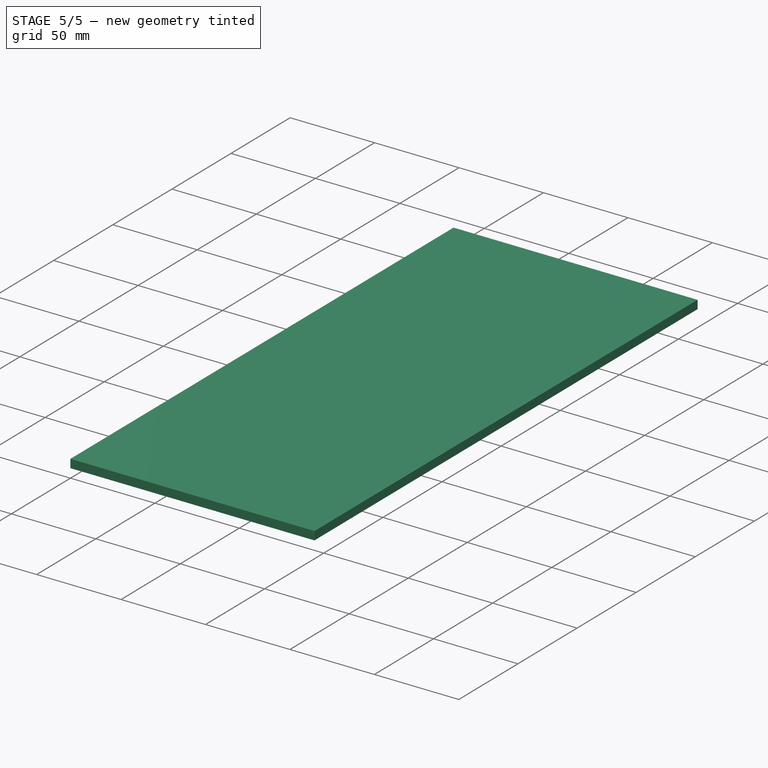
[diagram: stage 5 of 5 — iso view after this stage's code; geometry added in this stage tinted green]
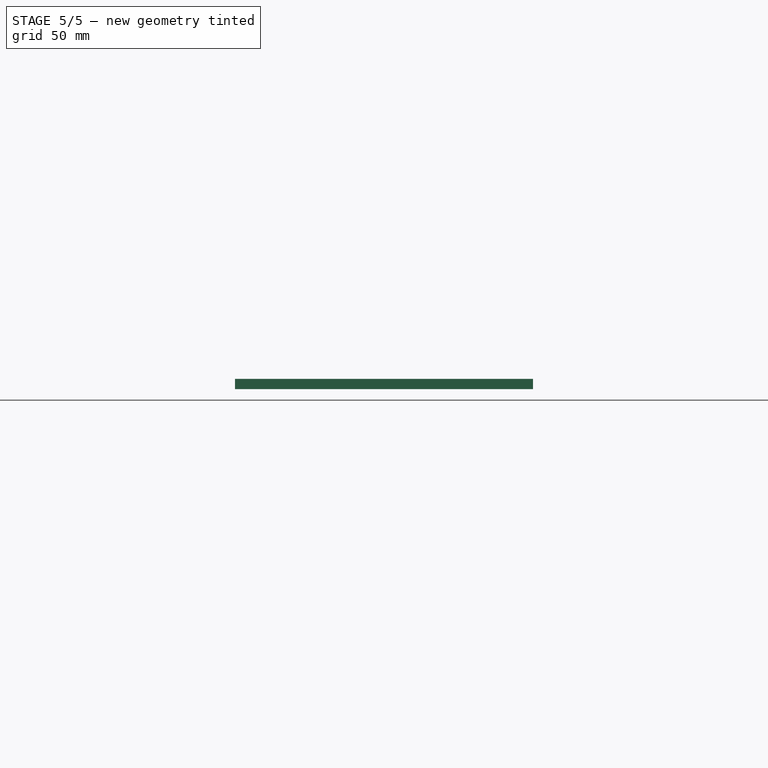
[diagram: stage 5 of 5 — front view after this stage's code; geometry added in this stage tinted green]
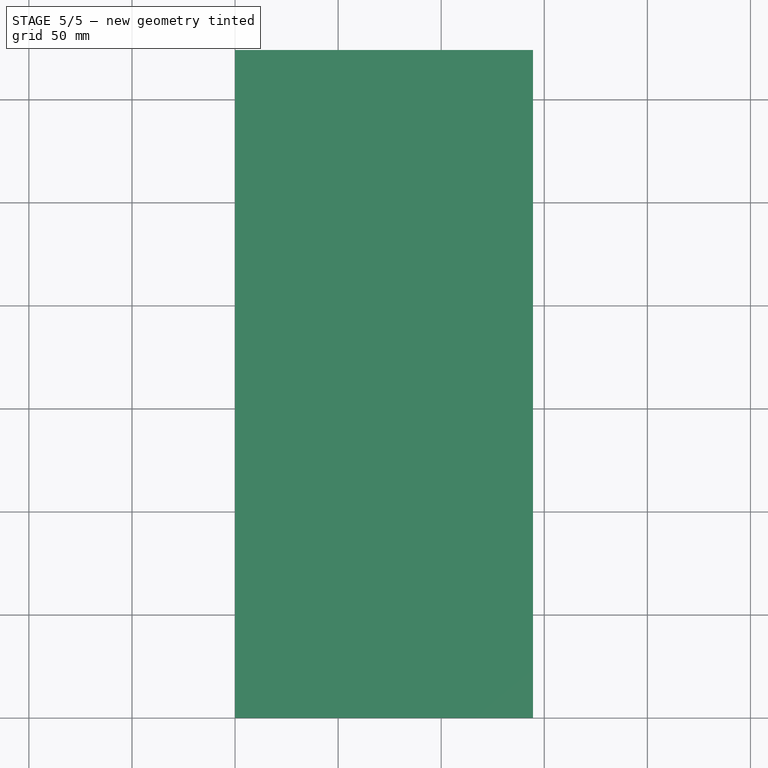
[diagram: stage 5 of 5 — top view after this stage's code; geometry added in this stage tinted green]
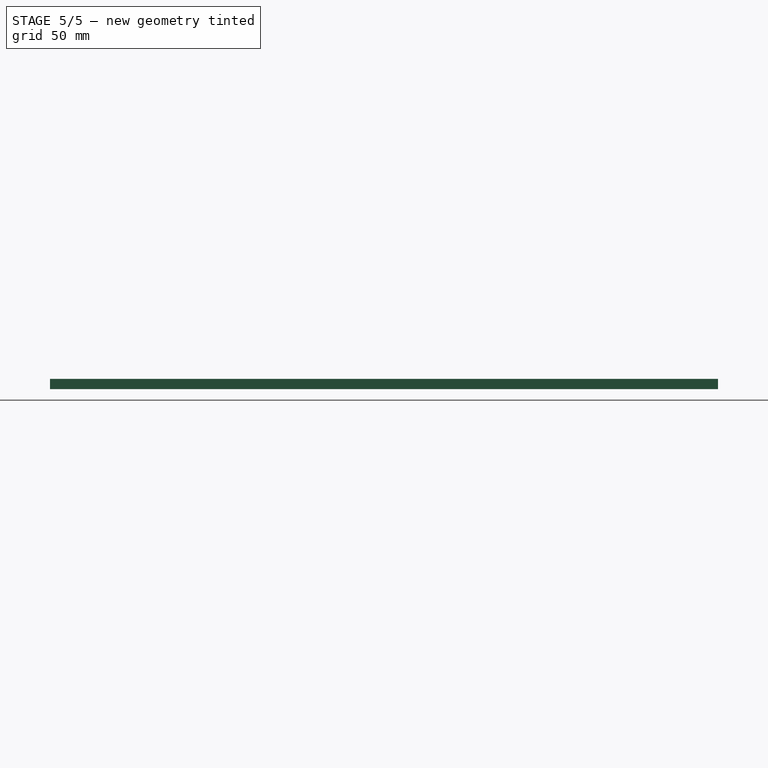
[diagram: stage 5 of 5 — right view after this stage's code; geometry added in this stage tinted green]
FEATURE [PartDesign::Body] Body021  label="GearLockD"
  Group = -> [ShapeBinder012,Sketch055,Pad028,Sketch060,Pocket038,Chamfer022]
  Origin = -> Origin021
  Placement = pos=(-150,0,15.5) rot=(0,0,1;0rad)
  Tip = -> Chamfer022
FEATURE [App::FeaturePython] SetupSheet  # Path/CAM operation (typed FeaturePython)
  ClearanceHeightExpression = OpStockZMax+SetupSheet.ClearanceHeightOffset
  ClearanceHeightOffset = 5
  CoolantMode = 0
  CoolantModes = None | Flood | Mist
  FinalDepthExpression = OpFinalDepth
  HorizRapid = 0
  SafeHeightExpression = OpStockZMax+SetupSheet.SafeHeightOffset
  SafeHeightOffset = 3
  StartDepthExpression = OpStartDepth
  StepDownExpression = OpToolDiameter
  VertRapid = 0
FEATURE [Part::FeaturePython] Clone  label="Model-GearLockA"  # Draft clone (typed FeaturePython)
  AttacherType = Attacher::AttachEngine3D
  Fuse = false
  Objects = -> [Body018]
  PathResource = Model
  Placement = pos=(195.823,107.8,-5) rot=(0,0,1;0rad)
  Scale = (1,1,1)
FEATURE [Part::FeaturePython] Clone001  label="Model-GearLockB"  # Draft clone (typed FeaturePython)
  AttacherType = Attacher::AttachEngine3D
  Fuse = false
  Objects = -> [Body019]
  PathResource = Model
  Placement = pos=(145.823,107.8,-5) rot=(0,0,1;0rad)
  Scale = (1,1,1)
FEATURE [Part::FeaturePython] Clone002  label="Model-GearLockC"  # Draft clone (typed FeaturePython)
  AttacherType = Attacher::AttachEngine3D
  Fuse = false
  Objects = -> [Body020]
  PathResource = Model
  Placement = pos=(95.8232,107.8,-5) rot=(0,0,1;0rad)
  Scale = (1,1,1)
FEATURE [App::DocumentObjectGroup] Model
  Group = -> [Clone,Clone001,Clone002,Clone003]
FEATURE [Path::FeaturePython] Default_Tool  label="TC: Default Tool"  # Path/CAM operation (typed FeaturePython)
  HorizFeed = 10
  HorizRapid = 0
  SpindleDir = 0
  SpindleSpeed = 16000
  ToolNumber = 1
  VertFeed = 10
  VertRapid = 0
  expr: HorizRapid = SetupSheet.HorizRapid
  expr: VertRapid = SetupSheet.VertRapid
FEATURE [Part::FeaturePython] Stock001  # WARN: FeaturePython — macro-defined, semantics opaque (R4)
  Base = -> Model
  ExtXneg = 0
  ExtXpos = 0
  ExtYneg = 0
  ExtYpos = 0
  ExtZneg = 0
  ExtZpos = 0
  Placement = pos=(0,0,-5) rot=(0,0,1;0rad)
  StockType = FromBase
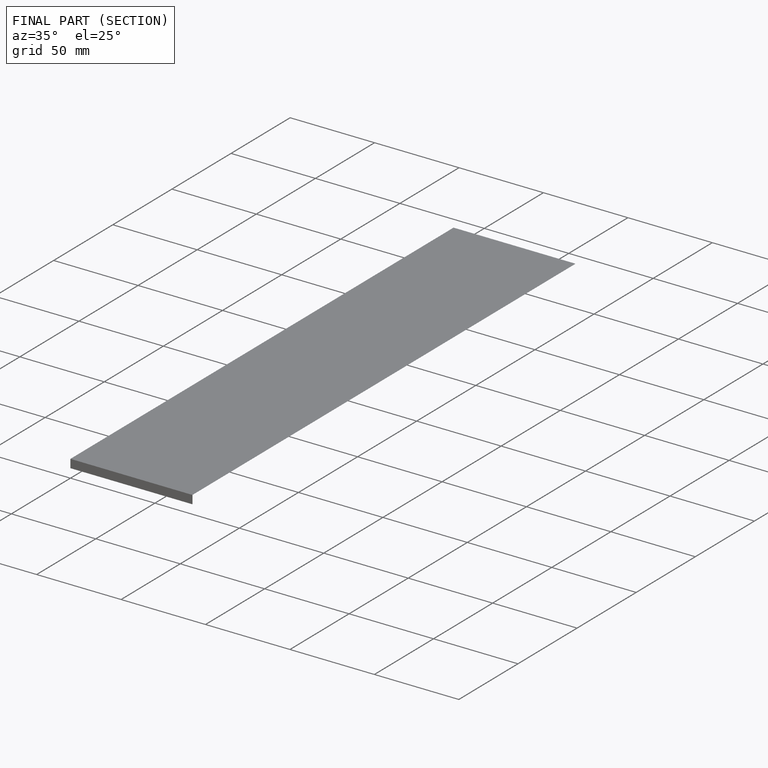
[diagram: finished part — half-section view (interior)]
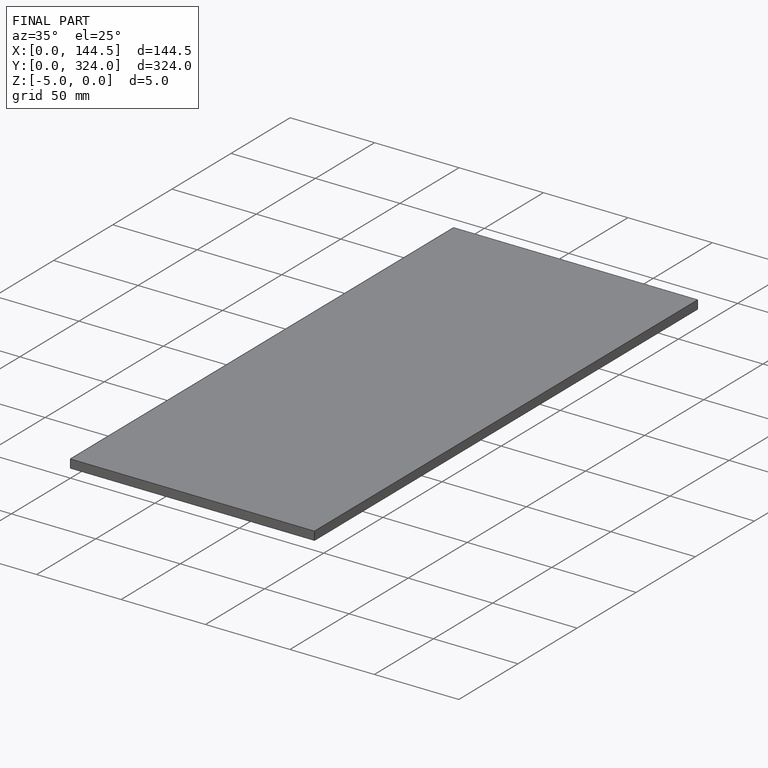
[diagram: finished part — iso view with bounding-box wireframe]
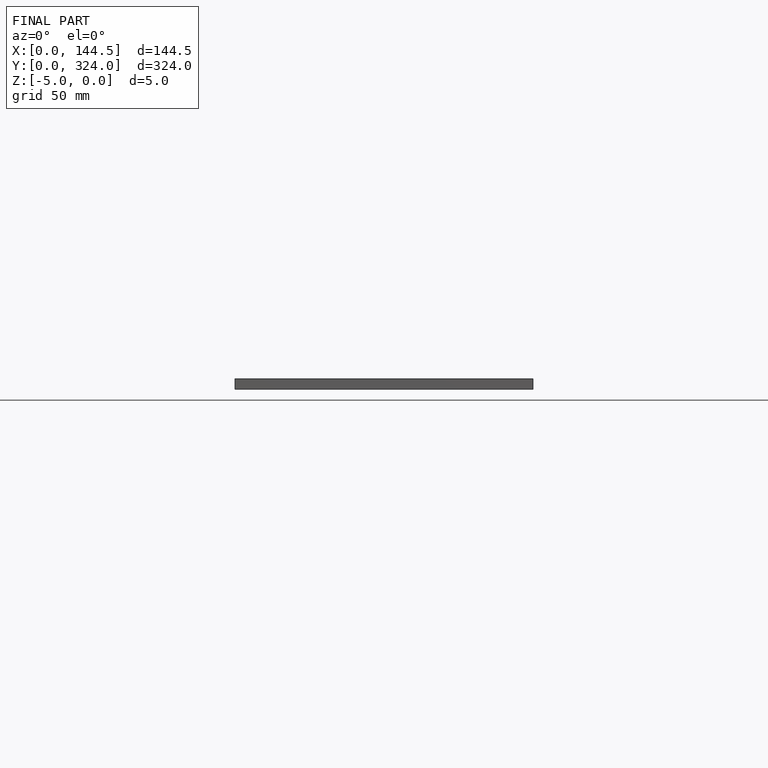
[diagram: finished part — front view with bounding-box wireframe]
